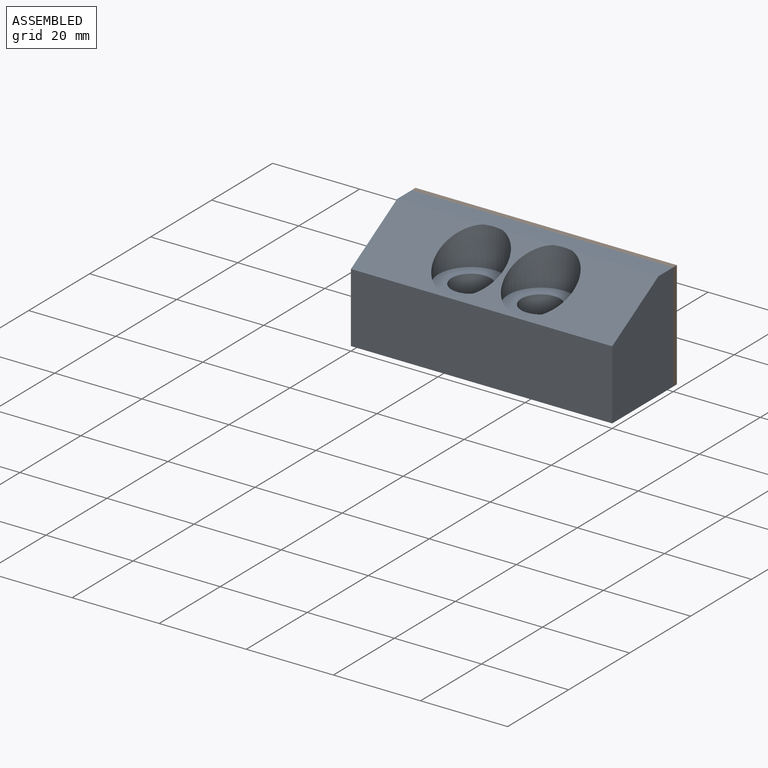
[diagram: assembled view]
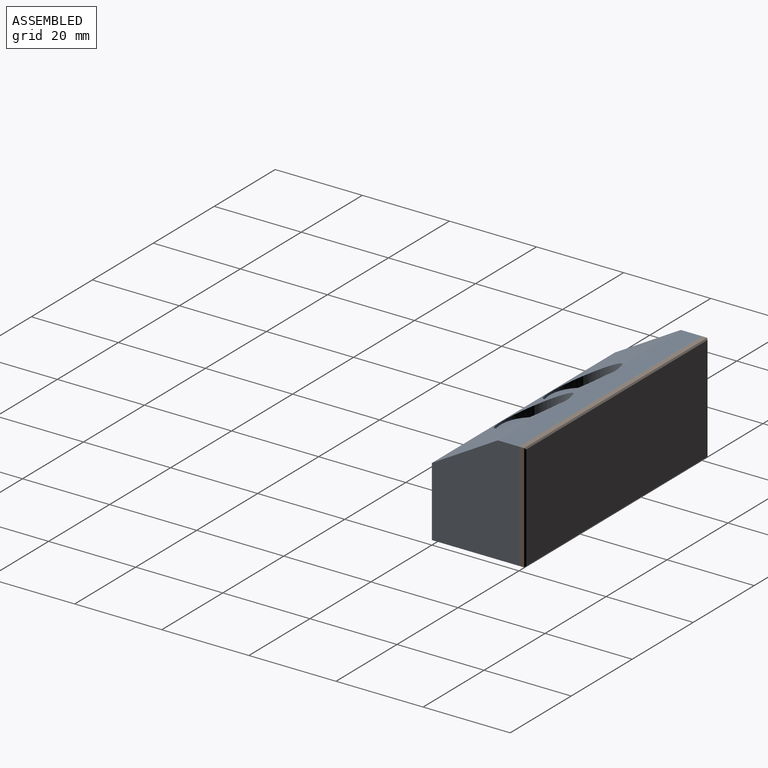
[diagram: assembled view, second angle]
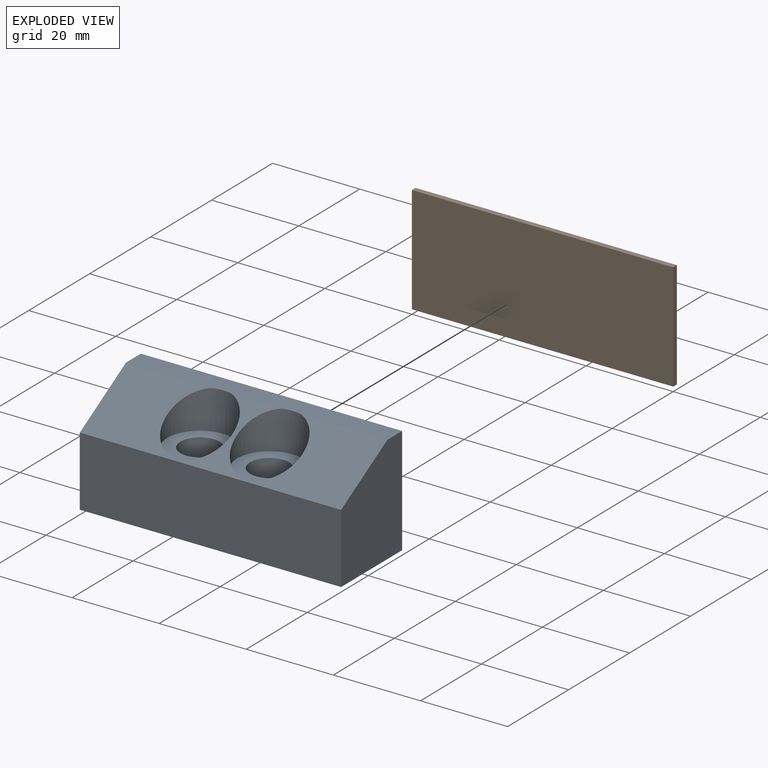
[diagram: exploded view]
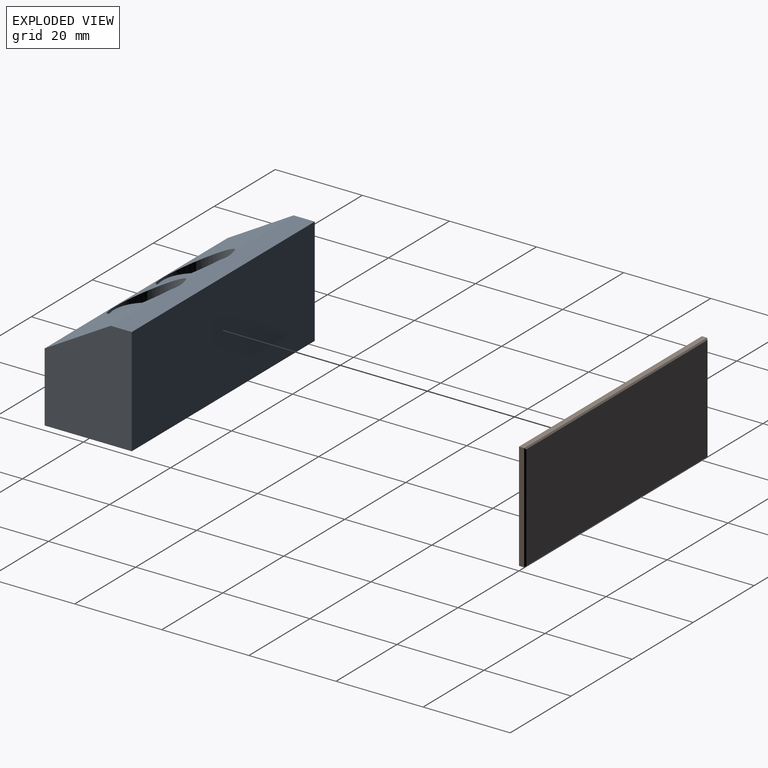
[diagram: exploded view, second angle]
ASSEMBLY  parts=2 mates=3
PART A: 13 faces, bbox 61x21x25.8 mm
  f0: plane 61.01x16.17mm, normal (0,-0.5,0.87), area 644.3mm2, adj f3,f4,f5,f6,f8,f11
  f1: plane 60x20mm, normal (0,0,-1), area 1072.8mm2, adj f2,f4,f5,f6,f7,f10
  f2: plane 60x24.75mm, normal (0,1,0), area 1485mm2, adj f1,f3,f5,f6
  f3: plane 60x4.84mm, normal (0,0,1), area 288.6mm2, adj f0,f2,f5,f6,f8,f11
  f4: plane 60x16mm, normal (0,-1,0), area 960mm2, adj f0,f1,f5,f6
  f5: plane 24.75x20mm, normal (1,0,0), area 428.7mm2, adj f0,f1,f2,f3,f4
  f6: plane 24.75x20mm, normal (-1,0,0), area 428.7mm2, adj f0,f1,f2,f3,f4
  f7: cylinder r=4.5mm len=15.75mm, axis (0,0,1), area 445.3mm2, adj f1,f9
  f8: cylinder r=7.5mm len=15mm, axis (0,0,1), area 225.7mm2, adj f0,f3,f9
  f9: plane 15x15mm, normal (0,0,1), area 113.1mm2, adj f7,f8
  f10: cylinder r=4.5mm len=15.75mm, axis (0,0,1), area 445.3mm2, adj f1,f12
  f11: cylinder r=7.5mm len=15mm, axis (0,0,1), area 225.7mm2, adj f0,f3,f12
  f12: plane 15x15mm, normal (0,0,1), area 113.1mm2, adj f10,f11
PART B: 10 faces, bbox 60x1.5x24.8 mm
  f0: plane 60x1.2mm, normal (0,0,1), area 72mm2, adj f1,f3,f5,f7
  f1: plane 24.75x1.2mm, normal (-1,0,0), area 29.7mm2, adj f0,f2,f5,f6
  f2: plane 60x1.2mm, normal (0,0,-1), area 72mm2, adj f1,f3,f5,f8
  f3: plane 24.75x1.2mm, normal (1,0,0), area 29.7mm2, adj f0,f2,f5,f9
  f4: plane 59.4x24.15mm, normal (0,-1,0), area 1434.5mm2, adj f6,f7,f8,f9
  f5: plane 60x24.75mm, normal (0,1,0), area 1485mm2, adj f0,f1,f2,f3
  f6: plane 24.75x0.3mm, normal (-0.71,-0.71,0), area 10.4mm2, adj f1,f4,f7,f8
  f7: plane 60x0.3mm, normal (0,-0.71,0.71), area 25.3mm2, adj f0,f4,f6,f9
  f8: plane 60x0.3mm, normal (0,-0.71,-0.71), area 25.3mm2, adj f2,f4,f6,f9
  f9: plane 24.75x0.3mm, normal (0.71,-0.71,0), area 10.4mm2, adj f3,f4,f7,f8
PLACE A t=(-30,20,0)mm
PLACE B rot(axis=(1,0,0),180deg) t=(-30,20,24.75)mm
MATE planar B.f5 <-> A.f2  axis (0,-1,0) through (-30,20,12.37)mm
MATE planar B.f3 <-> A.f5  axis (1,0,0) through (0,20.6,12.37)mm
MATE planar B.f2 <-> A.f3  axis (0,0,1) through (-30,20.6,24.75)mm
